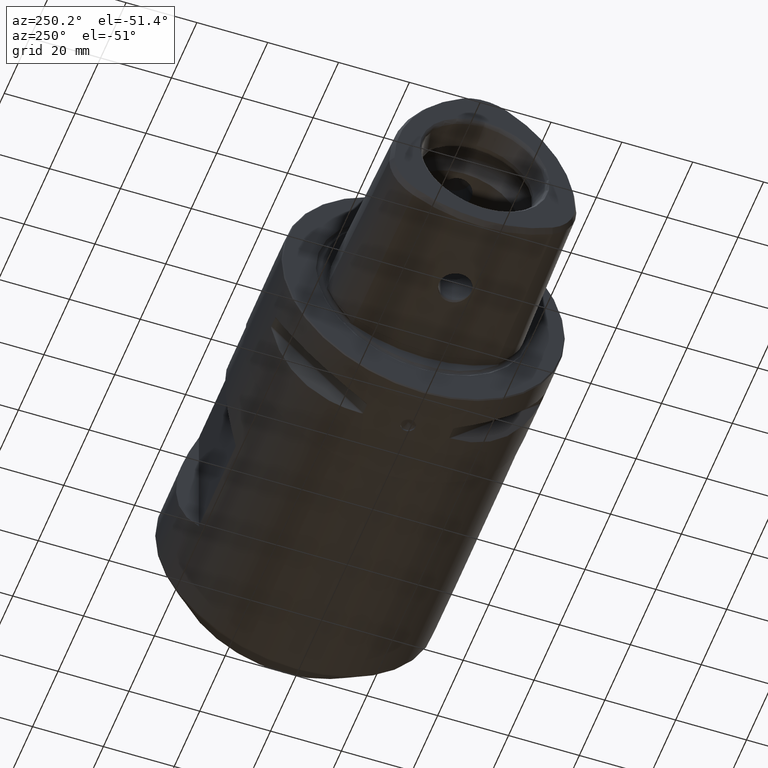
[diagram: clean part render]
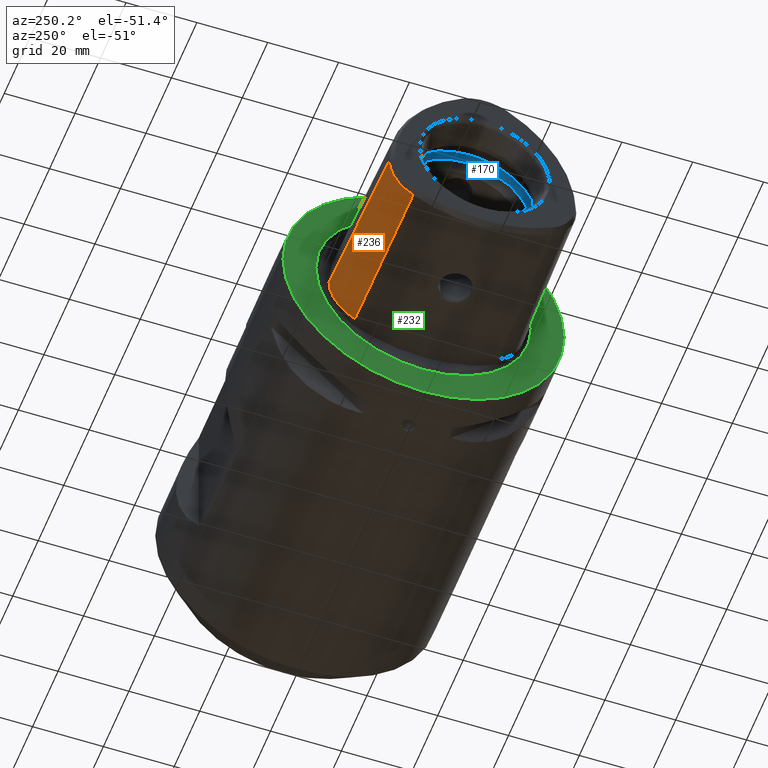
[diagram: same view with three faces highlighted in distinct colors, each labeled with its STEP entity id]
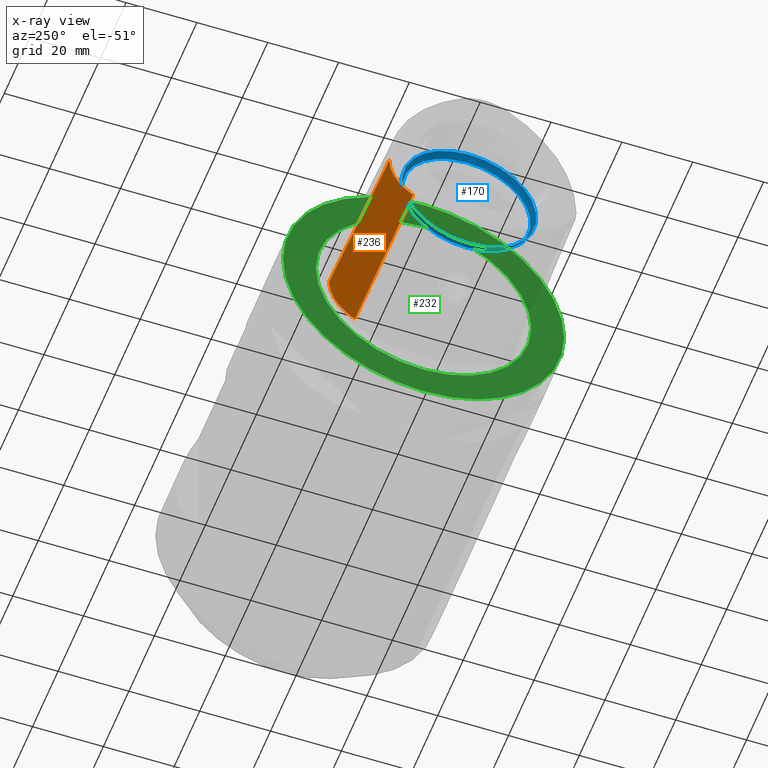
[diagram: x-ray of the same camera — body ghosted, the three highlighted faces saturated]
A machine part, auxiliary view with three faces highlighted in distinct colors.
The next image is the same camera in x-ray (body ghosted, the three faces saturated) — at least one of them is partly hidden behind the body in this view.
Their STEP definitions:

[orange] entity #236 — the highlighted conical surface has half-angle 1.432 deg.
#236 = ADVANCED_FACE( '', ( #537 ), #538, .T. );
#537 = FACE_OUTER_BOUND( '', #908, .T. );
#538 = CONICAL_SURFACE( '', #909, 14.5717967697245, 0.0249969933592226 );
#908 = EDGE_LOOP( '', ( #1491, #1492, #1493, #1494 ) );
#909 = AXIS2_PLACEMENT_3D( '', #1495, #1496, #1497 );
#1491 = ORIENTED_EDGE( '', *, *, #2102, .F. );
#1492 = ORIENTED_EDGE( '', *, *, #1922, .T. );
#1493 = ORIENTED_EDGE( '', *, *, #2103, .T. );
#1494 = ORIENTED_EDGE( '', *, *, #1967, .T. );
#1495 = CARTESIAN_POINT( '', ( -3.00000000000000, 12.9282032302755, -7.46410161513774 ) );
#1496 = DIRECTION( '', ( 1.00000000000000, -0.000000000000000, 0.000000000000000 ) );
#1497 = DIRECTION( '', ( 0.000000000000000, 0.000000000000000, -1.00000000000000 ) );
#1922 = EDGE_CURVE( '', #2243, #2241, #2244, .T. );
#1967 = EDGE_CURVE( '', #2313, #2315, #2317, .T. );
#2102 = EDGE_CURVE( '', #2243, #2315, #2521, .T. );
#2103 = EDGE_CURVE( '', #2241, #2313, #2522, .T. );
#2241 = VERTEX_POINT( '', #2705 );
#2243 = VERTEX_POINT( '', #2708 );
#2244 = CIRCLE( '', #2709, 13.4846392038816 );
#2313 = VERTEX_POINT( '', #2940 );
#2315 = VERTEX_POINT( '', #2943 );
#2317 = CIRCLE( '', #2946, 14.5897835000573 );
#2521 = LINE( '', #3633, #3634 );
#2522 = LINE( '', #3635, #3636 );
#2705 = CARTESIAN_POINT( '', ( -46.4824742362102, 26.4128424341571, -7.46410161513775 ) );
#2708 = CARTESIAN_POINT( '', ( -46.4824742362102, 19.6705228322163, -19.1421417265667 ) );
#2709 = AXIS2_PLACEMENT_3D( '', #4142, #4143, #4144 );
#2940 = CARTESIAN_POINT( '', ( -2.28059412649917, 27.5179867303328, -7.46410161513776 ) );
#2943 = CARTESIAN_POINT( '', ( -2.28059412649910, 20.2230949803041, -20.0992247619023 ) );
#2946 = AXIS2_PLACEMENT_3D( '', #4203, #4204, #4205 );
#3633 = CARTESIAN_POINT( '', ( -3.00000000000000, 20.2141016151378, -20.0836477965031 ) );
#3634 = VECTOR( '', #4365, 1000.00000000000 );
#3635 = CARTESIAN_POINT( '', ( -3.00000000000000, 27.5000000000000, -7.46410161513775 ) );
#3636 = VECTOR( '', #4366, 1000.00000000000 );
#4142 = CARTESIAN_POINT( '', ( -46.4824742362102, 12.9282032302755, -7.46410161513774 ) );
#4143 = DIRECTION( '', ( 1.00000000000000, 0.000000000000000, 0.000000000000000 ) );
#4144 = DIRECTION( '', ( 0.000000000000000, 0.000000000000000, -1.00000000000000 ) );
#4203 = CARTESIAN_POINT( '', ( -2.28059412649917, 12.9282032302755, -7.46410161513774 ) );
#4204 = DIRECTION( '', ( -1.00000000000000, 6.12303176911189E-017, 0.000000000000000 ) );
#4205 = DIRECTION( '', ( -6.12303176911189E-017, -1.00000000000000, 0.000000000000000 ) );
#4365 = DIRECTION( '', ( 0.999687591429374, 0.0124971951066741, -0.0216457768768607 ) );
#4366 = DIRECTION( '', ( 0.999687591429374, 0.0249943902133482, -1.78529893695353E-017 ) );

[blue] entity #170 — the highlighted toroidal blend (fillet) surface has major radius 16 mm and minor (blend) radius 3 mm.
#170 = ADVANCED_FACE( '', ( #422, #423 ), #424, .F. );
#422 = FACE_OUTER_BOUND( '', #793, .T. );
#423 = FACE_OUTER_BOUND( '', #794, .T. );
#424 = TOROIDAL_SURFACE( '', #795, 16.0000000000000, 3.00000000000000 );
#793 = EDGE_LOOP( '', ( #1246 ) );
#794 = EDGE_LOOP( '', ( #1247 ) );
#795 = AXIS2_PLACEMENT_3D( '', #1248, #1249, #1250 );
#1246 = ORIENTED_EDGE( '', *, *, #1948, .F. );
#1247 = ORIENTED_EDGE( '', *, *, #1983, .F. );
#1248 = CARTESIAN_POINT( '', ( -35.7426406871193, 0.000000000000000, 2.57276516940267E-015 ) );
#1249 = DIRECTION( '', ( -1.00000000000000, 0.000000000000000, 6.56039118119131E-018 ) );
#1250 = DIRECTION( '', ( 6.56039118119131E-018, 0.000000000000000, 1.00000000000000 ) );
#1948 = EDGE_CURVE( '', #2287, #2287, #2288, .F. );
#1983 = EDGE_CURVE( '', #2343, #2343, #2344, .T. );
#2287 = VERTEX_POINT( '', #2875 );
#2288 = CIRCLE( '', #2876, 19.0000000000000 );
#2343 = VERTEX_POINT( '', #2990 );
#2344 = CIRCLE( '', #2991, 18.1213203435596 );
#2875 = CARTESIAN_POINT( '', ( -35.7426406871193, 0.000000000000000, 19.0000000000000 ) );
#2876 = AXIS2_PLACEMENT_3D( '', #4175, #4176, #4177 );
#2990 = CARTESIAN_POINT( '', ( -33.6213203435597, 0.000000000000000, 18.1213203435597 ) );
#2991 = AXIS2_PLACEMENT_3D( '', #4222, #4223, #4224 );
#4175 = CARTESIAN_POINT( '', ( -35.7426406871193, 0.000000000000000, 2.57276516940267E-015 ) );
#4176 = DIRECTION( '', ( -1.00000000000000, 0.000000000000000, 6.56039118119131E-018 ) );
#4177 = DIRECTION( '', ( 6.56039118119131E-018, 0.000000000000000, 1.00000000000000 ) );
#4222 = CARTESIAN_POINT( '', ( -33.6213203435597, 0.000000000000000, 2.55884847812830E-015 ) );
#4223 = DIRECTION( '', ( -1.00000000000000, 0.000000000000000, 6.56039118119131E-018 ) );
#4224 = DIRECTION( '', ( 6.56039118119131E-018, 0.000000000000000, 1.00000000000000 ) );

[green] entity #232 — the highlighted planar face has unit normal (-1, 0, 0).
#232 = ADVANCED_FACE( '', ( #529, #530 ), #531, .T. );
#529 = FACE_OUTER_BOUND( '', #900, .T. );
#530 = FACE_BOUND( '', #901, .T. );
#531 = PLANE( '', #902 );
#900 = EDGE_LOOP( '', ( #1479 ) );
#901 = EDGE_LOOP( '', ( #1480 ) );
#902 = AXIS2_PLACEMENT_3D( '', #1481, #1482, #1483 );
#1479 = ORIENTED_EDGE( '', *, *, #2097, .T. );
#1480 = ORIENTED_EDGE( '', *, *, #2046, .F. );
#1481 = CARTESIAN_POINT( '', ( 0.000000000000000, 0.000000000000000, 30.2500000000000 ) );
#1482 = DIRECTION( '', ( -1.00000000000000, 0.000000000000000, 0.000000000000000 ) );
#1483 = DIRECTION( '', ( 0.000000000000000, 0.000000000000000, 1.00000000000000 ) );
#2046 = EDGE_CURVE( '', #2439, #2439, #2440, .T. );
#2097 = EDGE_CURVE( '', #2513, #2513, #2514, .T. );
#2439 = VERTEX_POINT( '', #3334 );
#2440 = CIRCLE( '', #3335, 30.4142135623731 );
#2513 = VERTEX_POINT( '', #3625 );
#2514 = CIRCLE( '', #3626, 39.7000000000000 );
#3334 = CARTESIAN_POINT( '', ( 0.000000000000000, 0.000000000000000, 30.4142135623731 ) );
#3335 = AXIS2_PLACEMENT_3D( '', #4306, #4307, #4308 );
#3625 = CARTESIAN_POINT( '', ( 0.000000000000000, 0.000000000000000, 39.7000000000000 ) );
#3626 = AXIS2_PLACEMENT_3D( '', #4356, #4357, #4358 );
#4306 = CARTESIAN_POINT( '', ( 0.000000000000000, 0.000000000000000, 0.000000000000000 ) );
#4307 = DIRECTION( '', ( -1.00000000000000, 0.000000000000000, 0.000000000000000 ) );
#4308 = DIRECTION( '', ( 0.000000000000000, 0.000000000000000, 1.00000000000000 ) );
#4356 = CARTESIAN_POINT( '', ( 0.000000000000000, 0.000000000000000, 5.40752407178191E-015 ) );
#4357 = DIRECTION( '', ( -1.00000000000000, 0.000000000000000, 0.000000000000000 ) );
#4358 = DIRECTION( '', ( 0.000000000000000, 0.000000000000000, 1.00000000000000 ) );